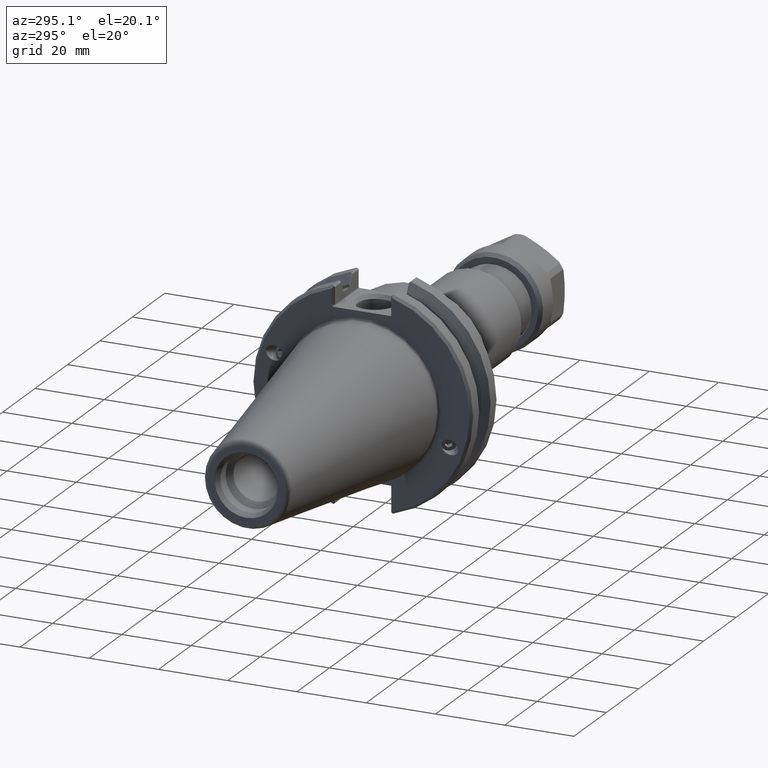
[diagram: clean part render]
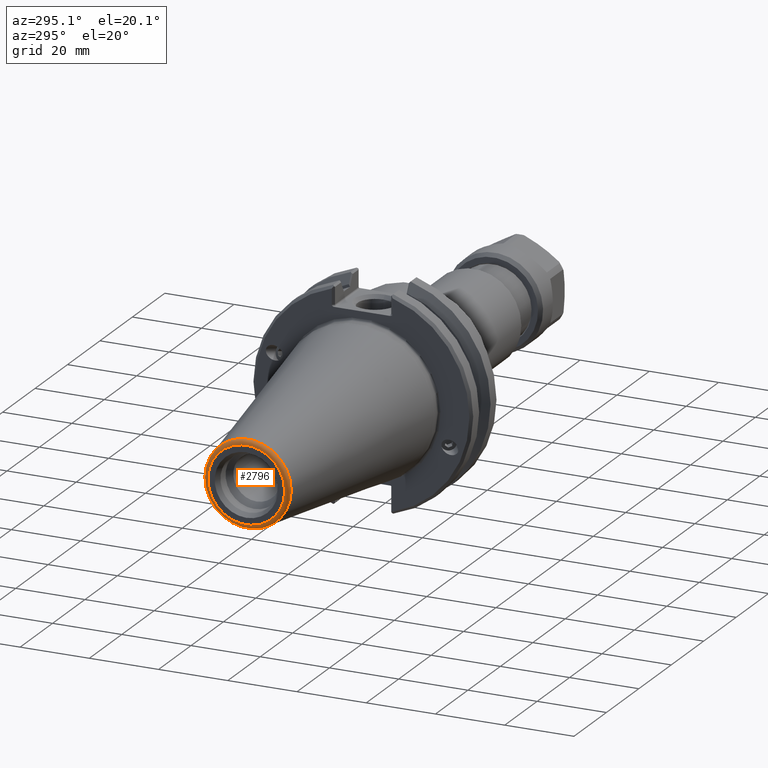
[diagram: same view with one face highlighted and labeled with its STEP entity id]
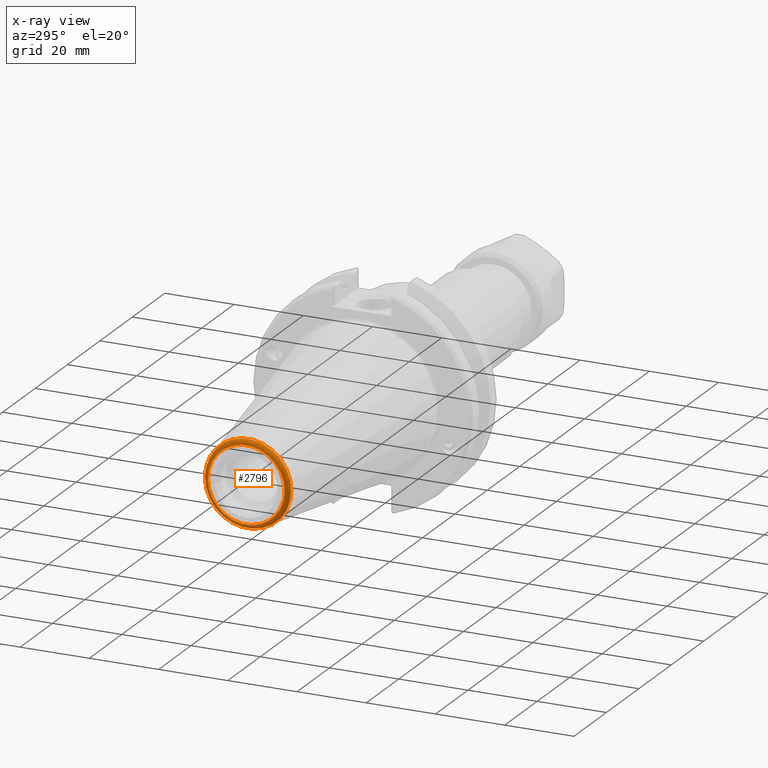
[diagram: x-ray of the same camera — body ghosted, the highlighted face saturated]
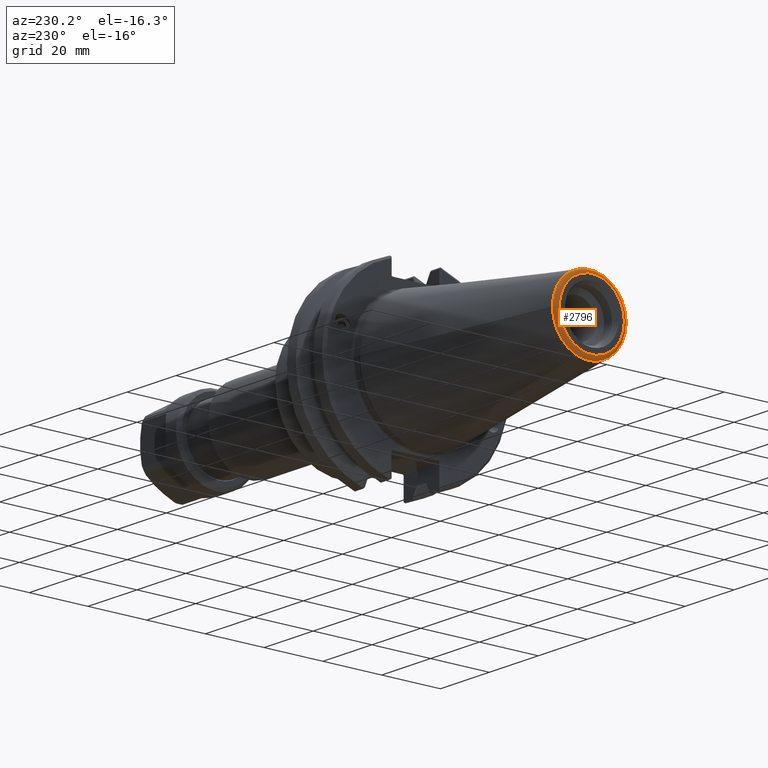
[diagram: same view with one face highlighted and labeled with its STEP entity id]
A machine part, auxiliary view. The second image highlights one B-rep face of the part: STEP entity #2796.
The next image is the same camera in x-ray: the body ghosted, the highlighted face saturated — about 0% of this face is hidden behind the body in this view.
A second angle (auxiliary view) of the same face is appended — the face is thin or edge-on in the first view.
In plain terms, the highlighted toroidal blend (fillet) surface has major radius 11.086 mm and minor (blend) radius 1.3716 mm.
Its self-contained STEP definition (entity closure, byte-faithful):
#607=FACE_BOUND('',#962,.T.);
#738=FACE_OUTER_BOUND('',#961,.T.);
#961=EDGE_LOOP('',(#2274));
#962=EDGE_LOOP('',(#2275));
#1132=CIRCLE('',#3054,0.436456459409101);
#1133=CIRCLE('',#3055,0.489891260103121);
#1400=VERTEX_POINT('',#5710);
#1401=VERTEX_POINT('',#5712);
#1728=EDGE_CURVE('',#1400,#1400,#1132,.T.);
#1729=EDGE_CURVE('',#1401,#1401,#1133,.T.);
#2274=ORIENTED_EDGE('',*,*,#1728,.T.);
#2275=ORIENTED_EDGE('',*,*,#1729,.T.);
#2590=TOROIDAL_SURFACE('',#3053,0.436456459409101,0.054);
#2796=ADVANCED_FACE('',(#738,#607),#2590,.T.);
#3053=AXIS2_PLACEMENT_3D('',#5709,#3633,#3634);
#3054=AXIS2_PLACEMENT_3D('',#5711,#3635,#3636);
#3055=AXIS2_PLACEMENT_3D('',#5713,#3637,#3638);
#3633=DIRECTION('center_axis',(1.,1.16523256636576E-36,0.));
#3634=DIRECTION('ref_axis',(0.,0.,-1.));
#3635=DIRECTION('center_axis',(1.,1.16523256636576E-36,0.));
#3636=DIRECTION('ref_axis',(1.16523256636576E-36,-1.,1.22460635382238E-16));
#3637=DIRECTION('center_axis',(-1.,3.56891999987323E-15,8.18993717006067E-29));
#3638=DIRECTION('ref_axis',(-3.56891999987323E-15,-1.,-2.8330424671867E-30));
#5709=CARTESIAN_POINT('Origin',(-2.633,-4.67607828882579E-36,0.));
#5710=CARTESIAN_POINT('',(-2.687,0.436456459409101,0.));
#5711=CARTESIAN_POINT('Origin',(-2.687,-4.73900084740954E-36,0.));
#5712=CARTESIAN_POINT('',(-2.64079243702511,0.48989126010311,-1.19984789960865E-16));
#5713=CARTESIAN_POINT('Origin',(-2.64079243702511,-1.13207780857447E-14,
-5.99923949804333E-17));